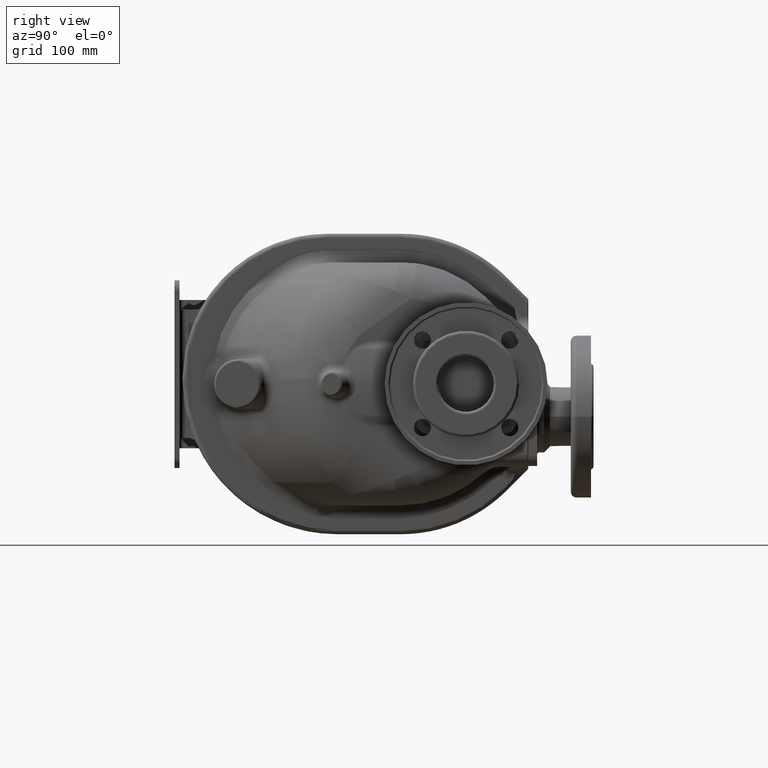
[diagram: clean part render]
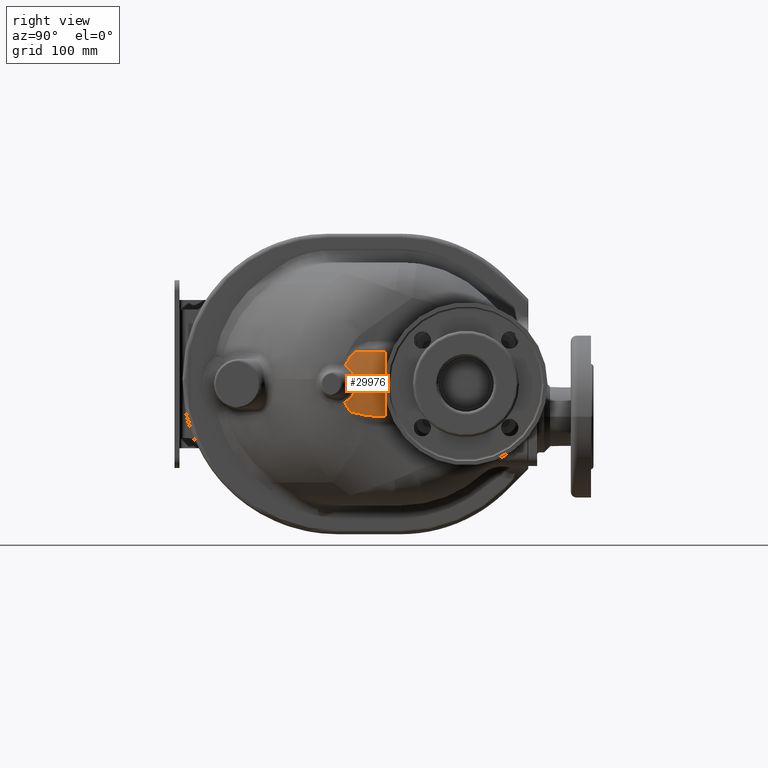
[diagram: same view with one face highlighted and labeled with its STEP entity id]
A machine part, right view. The second image highlights one B-rep face of the part: STEP entity #29976.
In plain terms, the highlighted spherical surface has radius 159 mm.
Its self-contained STEP definition (entity closure, byte-faithful):
#4146=CARTESIAN_POINT('',(8.456902642491E1,2.273201782657E1,2.297798142896E1));
#4148=CARTESIAN_POINT('',(8.451604318893E1,1.198797468706E1,-2.838124997573E1));
#4149=CARTESIAN_POINT('',(8.457224679232E1,1.216513582852E1,-2.831019538776E1));
#4150=CARTESIAN_POINT('',(8.468386311803E1,1.251659680094E1,-2.816177821882E1));
#4151=CARTESIAN_POINT('',(8.484896469738E1,1.303540948540E1,-2.792048117857E1));
#4152=CARTESIAN_POINT('',(8.501166736737E1,1.354567301032E1,-2.766079865096E1));
#4153=CARTESIAN_POINT('',(8.517192754376E1,1.404727966770E1,-2.738287863869E1));
#4154=CARTESIAN_POINT('',(8.532968771272E1,1.454005320615E1,-2.708677906048E1));
#4155=CARTESIAN_POINT('',(8.548488533184E1,1.502376932763E1,-2.677245204115E1));
#4156=CARTESIAN_POINT('',(8.563744351335E1,1.549812785956E1,-2.643975592223E1));
#4157=CARTESIAN_POINT('',(8.578723267624E1,1.596281461315E1,-2.608896738261E1));
#4158=CARTESIAN_POINT('',(8.593411888505E1,1.641748350293E1,-2.572031859444E1));
#4159=CARTESIAN_POINT('',(8.607796026618E1,1.686174615721E1,-2.533400605059E1));
#4160=CARTESIAN_POINT('',(8.621861084650E1,1.729518044595E1,-2.493017435414E1));
#4161=CARTESIAN_POINT('',(8.635591467284E1,1.771731016474E1,-2.450892397861E1));
#4162=CARTESIAN_POINT('',(8.648970271846E1,1.812758931333E1,-2.407031250546E1));
#4163=CARTESIAN_POINT('',(8.661991221852E1,1.852593072602E1,-2.361433193063E1));
#4164=CARTESIAN_POINT('',(8.674645747126E1,1.891216720399E1,-2.314094312714E1));
#4165=CARTESIAN_POINT('',(8.686923714997E1,1.928606861963E1,-2.265002906202E1));
#4166=CARTESIAN_POINT('',(8.698796507841E1,1.964682592172E1,-2.214213895191E1));
#4167=CARTESIAN_POINT('',(8.710235112970E1,1.999360377392E1,-2.161789289457E1));
#4168=CARTESIAN_POINT('',(8.721209982978E1,2.032552387974E1,-2.107797820012E1));
#4169=CARTESIAN_POINT('',(8.731713253374E1,2.064244132472E1,-2.052226290109E1));
#4170=CARTESIAN_POINT('',(8.741735312405E1,2.094416752174E1,-1.995057899547E1));
#4171=CARTESIAN_POINT('',(8.751264967592E1,2.123046315300E1,-1.936265348502E1));
#4172=CARTESIAN_POINT('',(8.760269527706E1,2.150044270355E1,-1.875948744063E1));
#4173=CARTESIAN_POINT('',(8.768716468271E1,2.175322498952E1,-1.814232497540E1));
#4174=CARTESIAN_POINT('',(8.776575875173E1,2.198800266490E1,-1.751252862369E1));
#4175=CARTESIAN_POINT('',(8.783831991293E1,2.220437291618E1,-1.687046370708E1));
#4176=CARTESIAN_POINT('',(8.790469586500E1,2.240195748513E1,-1.621642204722E1));
#4177=CARTESIAN_POINT('',(8.796473021370E1,2.258037482914E1,-1.555067849490E1));
#4178=CARTESIAN_POINT('',(8.801818850170E1,2.273902003514E1,-1.487449179975E1));
#4179=CARTESIAN_POINT('',(8.806486192399E1,2.287736985983E1,-1.418931814997E1));
#4180=CARTESIAN_POINT('',(8.810458434163E1,2.299503671377E1,-1.349666269310E1));
#4181=CARTESIAN_POINT('',(8.813721136073E1,2.309161166175E1,-1.279758535778E1));
#4182=CARTESIAN_POINT('',(8.816262113805E1,2.316675440333E1,-1.209314169466E1));
#4183=CARTESIAN_POINT('',(8.818071734497E1,2.322021186063E1,-1.138441818108E1));
#4184=CARTESIAN_POINT('',(8.819142629256E1,2.325180662781E1,-1.067283351899E1));
#4185=CARTESIAN_POINT('',(8.819471480272E1,2.326148983721E1,-9.959838720585E0));
#4186=CARTESIAN_POINT('',(8.819058831717E1,2.324933117827E1,-9.246884237039E0));
#4187=CARTESIAN_POINT('',(8.817904229011E1,2.321526035654E1,-8.535465252201E0));
#4188=CARTESIAN_POINT('',(8.816011491809E1,2.315934161763E1,-7.827086934753E0));
#4189=CARTESIAN_POINT('',(8.813388530338E1,2.308176819263E1,-7.123182592099E0));
#4190=CARTESIAN_POINT('',(8.810045186003E1,2.298279859356E1,-6.424790370131E0));
#4191=CARTESIAN_POINT('',(8.805993740241E1,2.286277829632E1,-5.732916198875E0));
#4192=CARTESIAN_POINT('',(8.801248576841E1,2.272210437037E1,-5.048650675919E0));
#4193=CARTESIAN_POINT('',(8.795826685888E1,2.256117359435E1,-4.373517785636E0));
#4194=CARTESIAN_POINT('',(8.789750034144E1,2.238054457362E1,-3.709022672892E0));
#4195=CARTESIAN_POINT('',(8.783040286310E1,2.218077184256E1,-3.056196871765E0));
#4196=CARTESIAN_POINT('',(8.775713060239E1,2.196223853533E1,-2.415332789864E0));
#4197=CARTESIAN_POINT('',(8.767783045721E1,2.172531166476E1,-1.786689871653E0));
#4198=CARTESIAN_POINT('',(8.759271110926E1,2.147053986582E1,-1.171036346711E0));
#4199=CARTESIAN_POINT('',(8.750207433667E1,2.119873185205E1,
-5.696917492992E-1));
#4200=CARTESIAN_POINT('',(8.740626155205E1,2.091081619073E1,1.607704084969E-2));
#4201=CARTESIAN_POINT('',(8.730548228544E1,2.060732492161E1,5.859744814735E-1));
#4202=CARTESIAN_POINT('',(8.719984850220E1,2.028849915661E1,1.140183099306E0));
#4203=CARTESIAN_POINT('',(8.708943862377E1,1.995447149159E1,1.678871774620E0));
#4204=CARTESIAN_POINT('',(8.697449757039E1,1.960594093752E1,2.201507713028E0));
#4205=CARTESIAN_POINT('',(8.685533119989E1,1.924379139261E1,2.707373398773E0));
#4206=CARTESIAN_POINT('',(8.673225180981E1,1.886890708662E1,3.195796986219E0));
#4207=CARTESIAN_POINT('',(8.660537762858E1,1.848156949157E1,3.666878531770E0));
#4208=CARTESIAN_POINT('',(8.647477702301E1,1.808189495059E1,4.120766613832E0));
#4209=CARTESIAN_POINT('',(8.634049362811E1,1.766990932140E1,4.557548053902E0));
#4210=CARTESIAN_POINT('',(8.620272160802E1,1.724622358625E1,4.977058373994E0));
#4211=CARTESIAN_POINT('',(8.606165326697E1,1.681142085250E1,5.379096653472E0));
#4212=CARTESIAN_POINT('',(8.591747207150E1,1.636603313301E1,5.763437783427E0));
#4213=CARTESIAN_POINT('',(8.577030249405E1,1.591039023272E1,6.129960220501E0));
#4214=CARTESIAN_POINT('',(8.562025651109E1,1.544476519616E1,6.478500016721E0));
#4215=CARTESIAN_POINT('',(8.546743800845E1,1.496938758910E1,6.808841277299E0));
#4216=CARTESIAN_POINT('',(8.531192831518E1,1.448457024137E1,7.121127330681E0));
#4217=CARTESIAN_POINT('',(8.515379399611E1,1.399054764735E1,7.415407847854E0));
#4218=CARTESIAN_POINT('',(8.499309494928E1,1.348750063420E1,7.691627882331E0));
#4219=CARTESIAN_POINT('',(8.482987626101E1,1.297553689989E1,7.949642399882E0));
#4220=CARTESIAN_POINT('',(8.471943423968E1,1.262839454095E1,8.109327491249E0));
#4221=CARTESIAN_POINT('',(8.466379808786E1,1.245332953673E1,8.186047801657E0));
#4223=CARTESIAN_POINT('',(8.462388250282E1,1.820882180146E1,1.786618756347E1));
#4224=CARTESIAN_POINT('',(8.462659392024E1,1.797400307697E1,1.755816372859E1));
#4225=CARTESIAN_POINT('',(8.463201986920E1,1.750742413878E1,1.692978466557E1));
#4226=CARTESIAN_POINT('',(8.463983757036E1,1.681661853391E1,1.594864769521E1));
#4227=CARTESIAN_POINT('',(8.464708388035E1,1.613820305318E1,1.493156041258E1));
#4228=CARTESIAN_POINT('',(8.465346740126E1,1.547422175308E1,1.388008572432E1));
#4229=CARTESIAN_POINT('',(8.465873513792E1,1.482688594215E1,1.279611288921E1));
#4230=CARTESIAN_POINT('',(8.466263916305E1,1.419834564881E1,1.168183308242E1));
#4231=CARTESIAN_POINT('',(8.466489540661E1,1.359091452655E1,1.054059707857E1));
#4232=CARTESIAN_POINT('',(8.466548579412E1,1.300709678078E1,9.374897112626E0));
#4233=CARTESIAN_POINT('',(8.466459472911E1,1.263512341641E1,8.584678970093E0));
#4234=CARTESIAN_POINT('',(8.466379808786E1,1.245332953673E1,8.186047801657E0));
#4236=CARTESIAN_POINT('',(8.456902417296E1,2.273205254137E1,2.297797952671E1));
#4237=CARTESIAN_POINT('',(8.457157330838E1,2.248193829099E1,2.273662579898E1));
#4238=CARTESIAN_POINT('',(8.457702065248E1,2.198130934899E1,2.224087611495E1));
#4239=CARTESIAN_POINT('',(8.458591886686E1,2.123028133856E1,2.145832011456E1));
#4240=CARTESIAN_POINT('',(8.459537316396E1,2.047798115327E1,2.063329167392E1));
#4241=CARTESIAN_POINT('',(8.460510177789E1,1.972390775674E1,1.976307587910E1));
#4242=CARTESIAN_POINT('',(8.461479149328E1,1.896779914560E1,1.884480561295E1));
#4243=CARTESIAN_POINT('',(8.462095733951E1,1.846188560759E1,1.819816099328E1));
#4244=CARTESIAN_POINT('',(8.462388250282E1,1.820882180146E1,1.786618756347E1));
#4246=CARTESIAN_POINT('',(8.456902417296E1,2.273205254137E1,2.297797952671E1));
#4247=CARTESIAN_POINT('',(8.476627060810E1,2.372600520612E1,2.297767835011E1));
#4248=CARTESIAN_POINT('',(8.514148630473E1,2.571848987945E1,2.297710352787E1));
#4249=CARTESIAN_POINT('',(8.564601918274E1,2.871979736849E1,2.297668705783E1));
#4250=CARTESIAN_POINT('',(8.609188175103E1,3.173212138944E1,2.297668380889E1));
#4251=CARTESIAN_POINT('',(8.647878116588E1,3.475397852943E1,2.297701787664E1));
#4252=CARTESIAN_POINT('',(8.680648994943E1,3.778385119265E1,2.297750770618E1));
#4253=CARTESIAN_POINT('',(8.707486316703E1,4.082021791457E1,2.297782953769E1));
#4254=CARTESIAN_POINT('',(8.728375538104E1,4.386155805126E1,2.297790059117E1));
#4255=CARTESIAN_POINT('',(8.743302895499E1,4.690634332913E1,2.297784400404E1));
#4256=CARTESIAN_POINT('',(8.752264548138E1,4.995308552816E1,2.297755370863E1));
#4257=CARTESIAN_POINT('',(8.754248976522E1,5.198444068721E1,2.297777765215E1));
#4258=CARTESIAN_POINT('',(8.754248991061E1,5.299999925892E1,2.297777777280E1));
#4260=CARTESIAN_POINT('',(-6.8E1,5.3E1,-1.E1));
#4261=DIRECTION('',(0.E0,-1.E0,0.E0));
#4262=DIRECTION('',(9.782547498959E-1,0.E0,-2.074069533697E-1));
#4263=AXIS2_PLACEMENT_3D('',#4260,#4261,#4262);
#4265=CARTESIAN_POINT('',(8.455766577920E1,1.831574324837E1,-3.835773167216E1));
#4266=CARTESIAN_POINT('',(8.468946161963E1,1.906190942633E1,-3.856127048225E1));
#4267=CARTESIAN_POINT('',(8.494432353255E1,2.055782386552E1,-3.895480209347E1));
#4268=CARTESIAN_POINT('',(8.530034859036E1,2.281205139215E1,-3.950465386949E1));
#4269=CARTESIAN_POINT('',(8.563026088653E1,2.507656951160E1,-4.001425401520E1));
#4270=CARTESIAN_POINT('',(8.593414580065E1,2.735140381532E1,-4.048370770042E1));
#4271=CARTESIAN_POINT('',(8.621207558003E1,2.963660409527E1,-4.091302717828E1));
#4272=CARTESIAN_POINT('',(8.646409522811E1,3.193225829722E1,-4.130211693842E1));
#4273=CARTESIAN_POINT('',(8.669021325832E1,3.423846807884E1,-4.165082960130E1));
#4274=CARTESIAN_POINT('',(8.689033357028E1,3.655553809966E1,-4.195937363438E1));
#4275=CARTESIAN_POINT('',(8.706432826387E1,3.888378341053E1,-4.222781064309E1));
#4276=CARTESIAN_POINT('',(8.721202175128E1,4.122359193660E1,-4.245608531433E1));
#4277=CARTESIAN_POINT('',(8.733305497868E1,4.357228740970E1,-4.264379981013E1));
#4278=CARTESIAN_POINT('',(8.742717336280E1,4.592713096768E1,-4.279065893278E1));
#4279=CARTESIAN_POINT('',(8.749422170388E1,4.828529499117E1,-4.289645988678E1));
#4280=CARTESIAN_POINT('',(8.753414613429E1,5.064428751861E1,-4.296109579919E1));
#4281=CARTESIAN_POINT('',(8.754271105017E1,5.221497308184E1,-4.297673438897E1));
#4282=CARTESIAN_POINT('',(8.754250523345E1,5.3E1,-4.297770558578E1));
#4284=CARTESIAN_POINT('',(8.451604318534E1,1.198797474926E1,-2.838125011851E1));
#4285=CARTESIAN_POINT('',(8.451752435285E1,1.215361190592E1,-2.873852777016E1));
#4286=CARTESIAN_POINT('',(8.452048523976E1,1.249459779998E1,-2.944946376060E1));
#4287=CARTESIAN_POINT('',(8.452499068467E1,1.303581697963E1,-3.050516231707E1));
#4288=CARTESIAN_POINT('',(8.452941065544E1,1.360591248493E1,-3.154895196617E1));
#4289=CARTESIAN_POINT('',(8.453376497749E1,1.420469904051E1,-3.257986201167E1));
#4290=CARTESIAN_POINT('',(8.453800174037E1,1.483164417464E1,-3.359683310448E1));
#4291=CARTESIAN_POINT('',(8.454213788312E1,1.548469276844E1,-3.459617090256E1));
#4292=CARTESIAN_POINT('',(8.454612404344E1,1.616131805020E1,-3.557461494156E1));
#4293=CARTESIAN_POINT('',(8.454998742174E1,1.685957113741E1,-3.652988179360E1));
#4294=CARTESIAN_POINT('',(8.455386820388E1,1.757788658679E1,-3.745991878001E1));
#4295=CARTESIAN_POINT('',(8.455640965238E1,1.806791808870E1,-3.806137500200E1));
#4296=CARTESIAN_POINT('',(8.455766577920E1,1.831574324837E1,-3.835773167216E1));
#4305=CARTESIAN_POINT('',(8.754250523359E1,5.299999947387E1,-4.297770558513E1));
#4416=CARTESIAN_POINT('',(8.455738926396E1,1.831565003233E1,-3.835764581886E1));
#22189=VERTEX_POINT('',#4148);
#22190=VERTEX_POINT('',#4221);
#22212=VERTEX_POINT('',#4146);
#22215=VERTEX_POINT('',#4416);
#22238=VERTEX_POINT('',#4223);
#22345=VERTEX_POINT('',#4305);
#22347=CARTESIAN_POINT('',(8.754248992748E1,5.3E1,2.297777777778E1));
#22348=VERTEX_POINT('',#22347);
#29959=CARTESIAN_POINT('',(-6.8E1,5.3E1,-1.E1));
#29960=DIRECTION('',(0.E0,0.E0,-1.E0));
#29961=DIRECTION('',(-1.E0,0.E0,0.E0));
#29962=AXIS2_PLACEMENT_3D('',#29959,#29960,#29961);
#29963=SPHERICAL_SURFACE('',#29962,1.59E2);
#29964=ORIENTED_EDGE('',*,*,#25465,.T.);
#29965=ORIENTED_EDGE('',*,*,#25555,.F.);
#29966=ORIENTED_EDGE('',*,*,#25602,.F.);
#29967=ORIENTED_EDGE('',*,*,#29947,.T.);
#29969=ORIENTED_EDGE('',*,*,#29968,.F.);
#29971=ORIENTED_EDGE('',*,*,#29970,.F.);
#29973=ORIENTED_EDGE('',*,*,#29972,.F.);
#29974=EDGE_LOOP('',(#29964,#29965,#29966,#29967,#29969,#29971,#29973));
#29975=FACE_OUTER_BOUND('',#29974,.F.);
#4222=B_SPLINE_CURVE_WITH_KNOTS('',3,(#4148,#4149,#4150,#4151,#4152,#4153,#4154,
#4155,#4156,#4157,#4158,#4159,#4160,#4161,#4162,#4163,#4164,#4165,#4166,#4167,
#4168,#4169,#4170,#4171,#4172,#4173,#4174,#4175,#4176,#4177,#4178,#4179,#4180,
#4181,#4182,#4183,#4184,#4185,#4186,#4187,#4188,#4189,#4190,#4191,#4192,#4193,
#4194,#4195,#4196,#4197,#4198,#4199,#4200,#4201,#4202,#4203,#4204,#4205,#4206,
#4207,#4208,#4209,#4210,#4211,#4212,#4213,#4214,#4215,#4216,#4217,#4218,#4219,
#4220,#4221),.UNSPECIFIED.,.F.,.F.,(4,1,1,1,1,1,1,1,1,1,1,1,1,1,1,1,1,1,1,1,1,1,
1,1,1,1,1,1,1,1,1,1,1,1,1,1,1,1,1,1,1,1,1,1,1,1,1,1,1,1,1,1,1,1,1,1,1,1,1,1,1,1,
1,1,1,1,1,1,1,1,1,4),(0.E0,1.408450704225E-2,2.816901408451E-2,
4.225352112676E-2,5.633802816901E-2,7.042253521127E-2,8.450704225352E-2,
9.859154929577E-2,1.126760563380E-1,1.267605633803E-1,1.408450704225E-1,
1.549295774648E-1,1.690140845070E-1,1.830985915493E-1,1.971830985915E-1,
2.112676056338E-1,2.253521126761E-1,2.394366197183E-1,2.535211267606E-1,
2.676056338028E-1,2.816901408451E-1,2.957746478873E-1,3.098591549296E-1,
3.239436619718E-1,3.380281690141E-1,3.521126760563E-1,3.661971830986E-1,
3.802816901408E-1,3.943661971831E-1,4.084507042254E-1,4.225352112676E-1,
4.366197183099E-1,4.507042253521E-1,4.647887323944E-1,4.788732394366E-1,
4.929577464789E-1,5.070422535211E-1,5.211267605634E-1,5.352112676056E-1,
5.492957746479E-1,5.633802816901E-1,5.774647887324E-1,5.915492957746E-1,
6.056338028169E-1,6.197183098592E-1,6.338028169014E-1,6.478873239437E-1,
6.619718309859E-1,6.760563380282E-1,6.901408450704E-1,7.042253521127E-1,
7.183098591549E-1,7.323943661972E-1,7.464788732394E-1,7.605633802817E-1,
7.746478873239E-1,7.887323943662E-1,8.028169014085E-1,8.169014084507E-1,
8.309859154930E-1,8.450704225352E-1,8.591549295775E-1,8.732394366197E-1,
8.873239436620E-1,9.014084507042E-1,9.154929577465E-1,9.295774647887E-1,
9.436619718310E-1,9.577464788732E-1,9.718309859155E-1,9.859154929577E-1,1.E0),
.UNSPECIFIED.);
#4235=B_SPLINE_CURVE_WITH_KNOTS('',3,(#4223,#4224,#4225,#4226,#4227,#4228,#4229,
#4230,#4231,#4232,#4233,#4234),.UNSPECIFIED.,.F.,.F.,(4,1,1,1,1,1,1,1,1,4),
(0.E0,1.111111111111E-1,2.222222222222E-1,3.333333333333E-1,4.444444444444E-1,
5.555555555556E-1,6.666666666667E-1,7.777777777778E-1,8.888888888889E-1,1.E0),
.UNSPECIFIED.);
#4245=B_SPLINE_CURVE_WITH_KNOTS('',3,(#4236,#4237,#4238,#4239,#4240,#4241,#4242,
#4243,#4244),.UNSPECIFIED.,.F.,.F.,(4,1,1,1,1,1,4),(0.E0,1.666666666667E-1,
3.333333333333E-1,5.E-1,6.666666666667E-1,8.333333333333E-1,1.E0),
.UNSPECIFIED.);
#4259=B_SPLINE_CURVE_WITH_KNOTS('',3,(#4246,#4247,#4248,#4249,#4250,#4251,#4252,
#4253,#4254,#4255,#4256,#4257,#4258),.UNSPECIFIED.,.F.,.F.,(4,1,1,1,1,1,1,1,1,1,
4),(0.E0,1.E-1,2.E-1,3.E-1,4.E-1,5.E-1,6.E-1,7.E-1,8.E-1,9.E-1,1.E0),
.UNSPECIFIED.);
#4264=CIRCLE('',#4263,1.59E2);
#4283=B_SPLINE_CURVE_WITH_KNOTS('',3,(#4265,#4266,#4267,#4268,#4269,#4270,#4271,
#4272,#4273,#4274,#4275,#4276,#4277,#4278,#4279,#4280,#4281,#4282),
.UNSPECIFIED.,.F.,.F.,(4,1,1,1,1,1,1,1,1,1,1,1,1,1,1,4),(0.E0,6.666666666667E-2,
1.333333333333E-1,2.E-1,2.666666666667E-1,3.333333333333E-1,4.E-1,
4.666666666667E-1,5.333333333333E-1,6.E-1,6.666666666667E-1,7.333333333333E-1,
8.E-1,8.666666666667E-1,9.333333333333E-1,1.E0),.UNSPECIFIED.);
#4297=B_SPLINE_CURVE_WITH_KNOTS('',3,(#4284,#4285,#4286,#4287,#4288,#4289,#4290,
#4291,#4292,#4293,#4294,#4295,#4296),.UNSPECIFIED.,.F.,.F.,(4,1,1,1,1,1,1,1,1,1,
4),(0.E0,1.E-1,2.E-1,3.E-1,4.E-1,5.E-1,6.E-1,7.E-1,8.E-1,9.E-1,1.E0),
.UNSPECIFIED.);
#25465=EDGE_CURVE('',#22189,#22190,#4222,.T.);
#25555=EDGE_CURVE('',#22238,#22190,#4235,.T.);
#25602=EDGE_CURVE('',#22212,#22238,#4245,.T.);
#29947=EDGE_CURVE('',#22212,#22348,#4259,.T.);
#29968=EDGE_CURVE('',#22345,#22348,#4264,.T.);
#29970=EDGE_CURVE('',#22215,#22345,#4283,.T.);
#29972=EDGE_CURVE('',#22189,#22215,#4297,.T.);
#29976=ADVANCED_FACE('',(#29975),#29963,.T.);